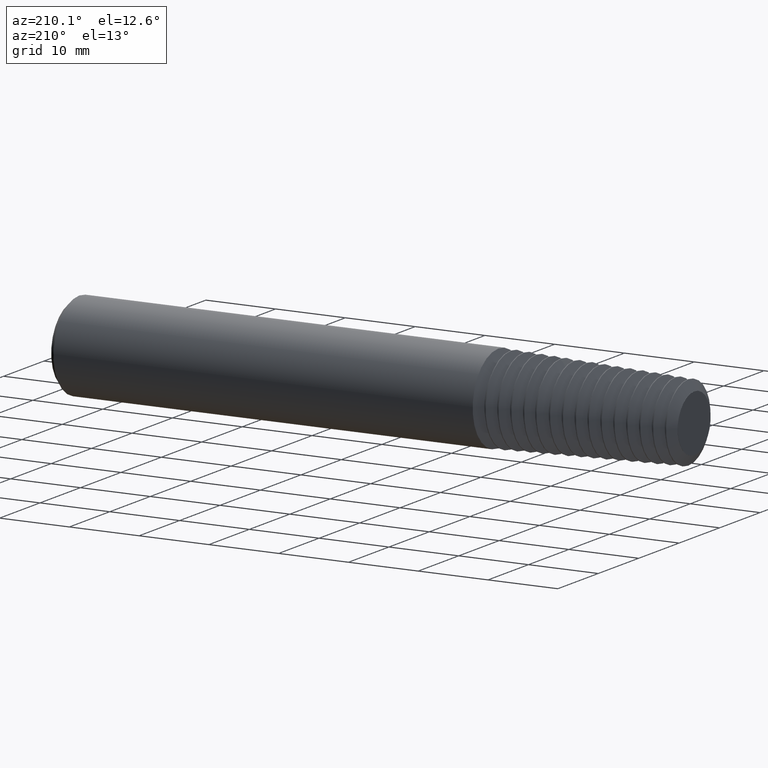
[diagram: clean part render]
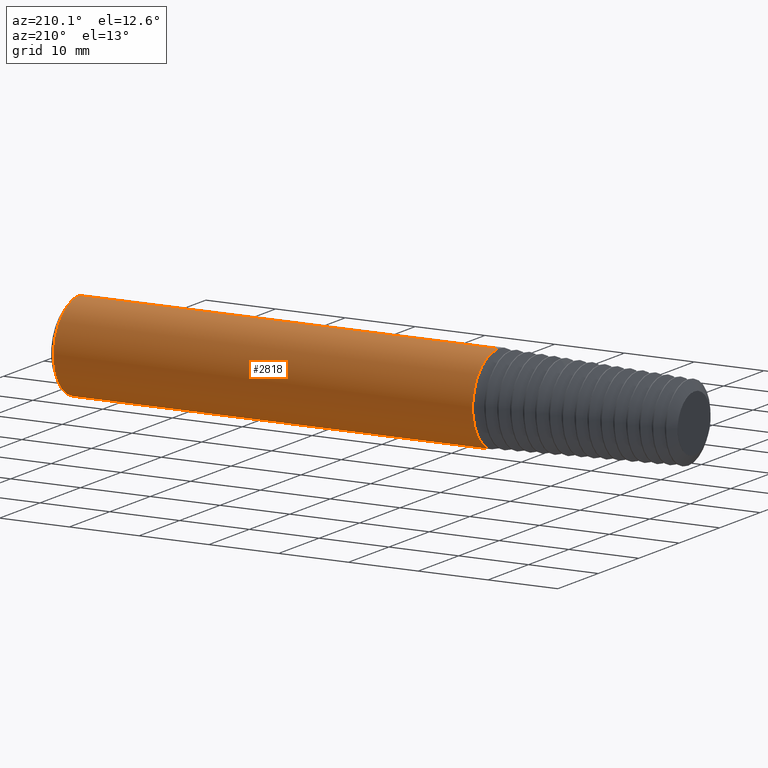
[diagram: same view with one face highlighted and labeled with its STEP entity id]
A machine part, auxiliary view. The second image highlights one B-rep face of the part: STEP entity #2818.
In plain terms, the highlighted cylindrical surface (partial cylindrical patch) has radius 6.3462 mm, axis along (-1, -0, -0).
Its self-contained STEP definition (entity closure, byte-faithful):
#151 = CARTESIAN_POINT ( 'NONE',  ( 0.1298227692868461347, 0.0000000000000000000, 0.2498499999999999888 ) ) ;
#191 = CARTESIAN_POINT ( 'NONE',  ( 0.1298227692868461347, 0.0000000000000000000, 0.0000000000000000000 ) ) ;
#200 = ORIENTED_EDGE ( 'NONE', *, *, #702, .T. ) ;
#237 = ORIENTED_EDGE ( 'NONE', *, *, #1551, .T. ) ;
#264 = DIRECTION ( 'NONE',  ( -1.000000000000000000, -0.0000000000000000000, -0.0000000000000000000 ) ) ;
#398 = CARTESIAN_POINT ( 'NONE',  ( 0.0000000000000000000, 0.0000000000000000000, 0.0000000000000000000 ) ) ;
#433 = DIRECTION ( 'NONE',  ( 1.000000000000000000, -0.0000000000000000000, -0.0000000000000000000 ) ) ;
#503 = CARTESIAN_POINT ( 'NONE',  ( 0.0000000000000000000, 3.059780027669661931E-17, -0.2498499999999999888 ) ) ;
#600 = LINE ( 'NONE', #503, #3256 ) ;
#645 = AXIS2_PLACEMENT_3D ( 'NONE', #398, #673, #2652 ) ;
#673 = DIRECTION ( 'NONE',  ( -1.000000000000000000, -0.0000000000000000000, -0.0000000000000000000 ) ) ;
#686 = DIRECTION ( 'NONE',  ( -1.000000000000000000, -0.0000000000000000000, -0.0000000000000000000 ) ) ;
#702 = EDGE_CURVE ( 'NONE', #1572, #2912, #1241, .T. ) ;
#764 = VERTEX_POINT ( 'NONE', #2190 ) ;
#859 = LINE ( 'NONE', #1968, #2681 ) ;
#974 = CARTESIAN_POINT ( 'NONE',  ( 2.495000000000000551, 0.0000000000000000000, 0.0000000000000000000 ) ) ;
#982 = CARTESIAN_POINT ( 'NONE',  ( 0.1298227692868461347, 3.059780027669661931E-17, -0.2498499999999999888 ) ) ;
#989 = EDGE_CURVE ( 'NONE', #764, #1572, #600, .T. ) ;
#1241 = CIRCLE ( 'NONE', #3293, 0.2498499999999999888 ) ;
#1318 = EDGE_LOOP ( 'NONE', ( #237, #1717, #200, #1326 ) ) ;
#1326 = ORIENTED_EDGE ( 'NONE', *, *, #2863, .F. ) ;
#1335 = CARTESIAN_POINT ( 'NONE',  ( 2.495000000000000551, 0.0000000000000000000, 0.2498499999999999888 ) ) ;
#1373 = CYLINDRICAL_SURFACE ( 'NONE', #645, 0.2498499999999999888 ) ;
#1539 = FACE_OUTER_BOUND ( 'NONE', #1318, .T. ) ;
#1551 = EDGE_CURVE ( 'NONE', #3016, #764, #2004, .T. ) ;
#1572 = VERTEX_POINT ( 'NONE', #982 ) ;
#1717 = ORIENTED_EDGE ( 'NONE', *, *, #989, .T. ) ;
#1744 = DIRECTION ( 'NONE',  ( 0.0000000000000000000, 0.0000000000000000000, -1.000000000000000000 ) ) ;
#1927 = AXIS2_PLACEMENT_3D ( 'NONE', #974, #3289, #1744 ) ;
#1968 = CARTESIAN_POINT ( 'NONE',  ( 0.0000000000000000000, 0.0000000000000000000, 0.2498499999999999888 ) ) ;
#2004 = CIRCLE ( 'NONE', #1927, 0.2498499999999999888 ) ;
#2177 = DIRECTION ( 'NONE',  ( 0.0000000000000000000, 0.0000000000000000000, -1.000000000000000000 ) ) ;
#2190 = CARTESIAN_POINT ( 'NONE',  ( 2.495000000000000551, 3.059780027669661931E-17, -0.2498499999999999888 ) ) ;
#2652 = DIRECTION ( 'NONE',  ( 0.0000000000000000000, 0.0000000000000000000, 1.000000000000000000 ) ) ;
#2681 = VECTOR ( 'NONE', #686, 39.37007874015748143 ) ;
#2818 = ADVANCED_FACE ( 'NONE', ( #1539 ), #1373, .T. ) ;
#2863 = EDGE_CURVE ( 'NONE', #3016, #2912, #859, .T. ) ;
#2912 = VERTEX_POINT ( 'NONE', #151 ) ;
#3016 = VERTEX_POINT ( 'NONE', #1335 ) ;
#3256 = VECTOR ( 'NONE', #264, 39.37007874015748143 ) ;
#3289 = DIRECTION ( 'NONE',  ( -1.000000000000000000, -0.0000000000000000000, -0.0000000000000000000 ) ) ;
#3293 = AXIS2_PLACEMENT_3D ( 'NONE', #191, #433, #2177 ) ;